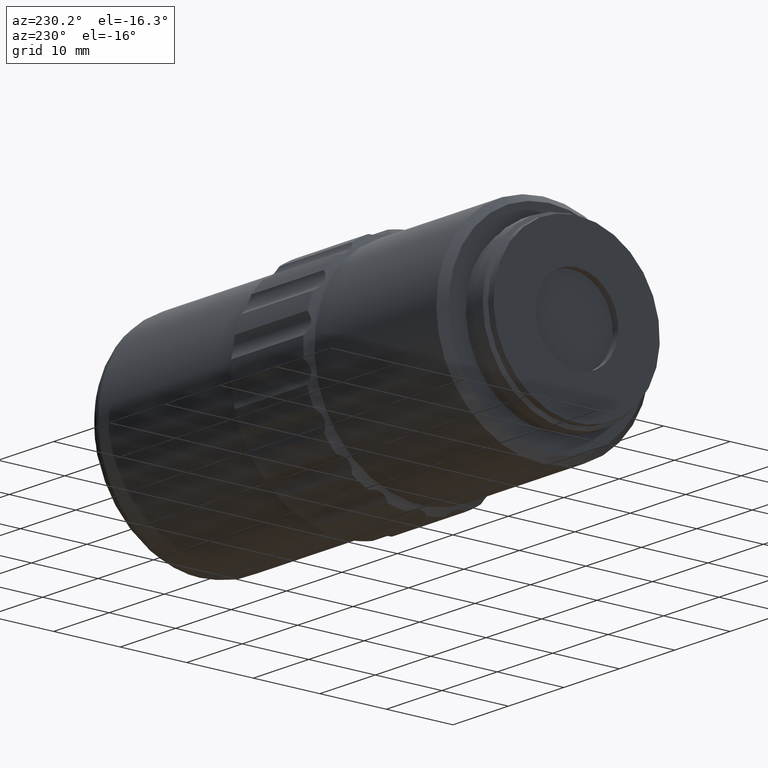
[diagram: clean part render]
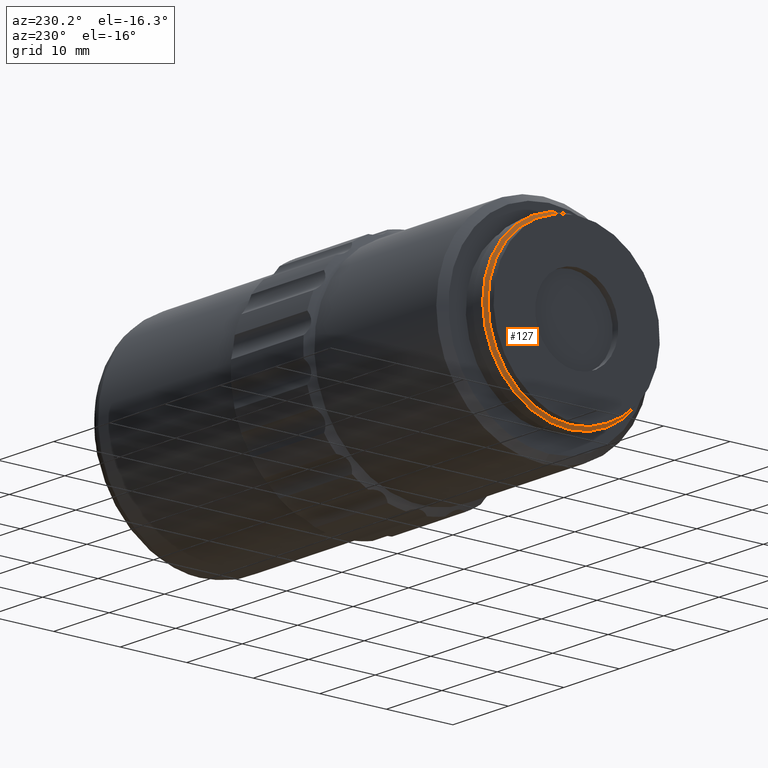
[diagram: same view with one face highlighted and labeled with its STEP entity id]
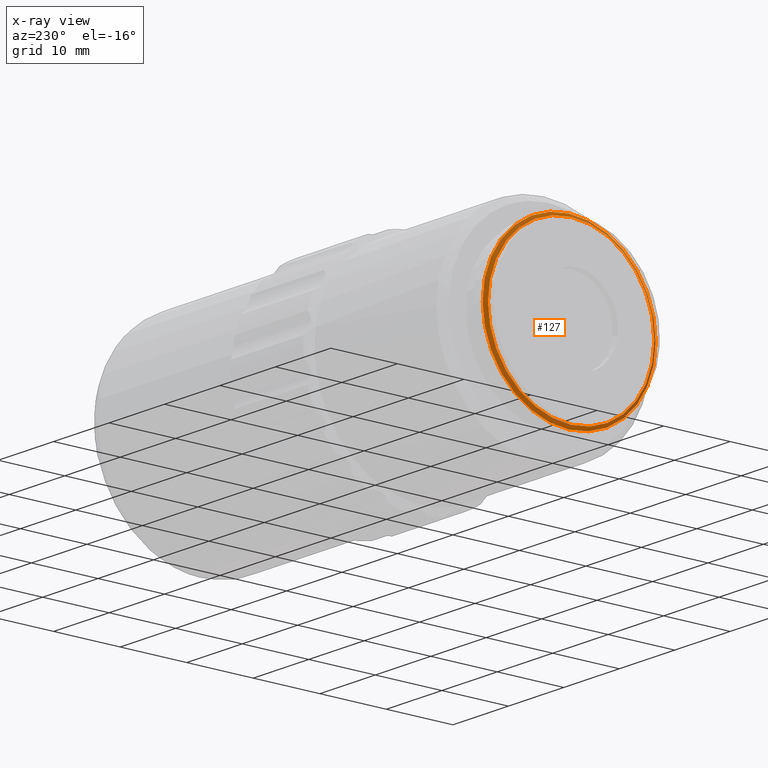
[diagram: x-ray of the same camera — body ghosted, the highlighted face saturated]
A machine part, auxiliary view. The second image highlights one B-rep face of the part: STEP entity #127.
The next image is the same camera in x-ray: the body ghosted, the highlighted face saturated — about 0% of this face is hidden behind the body in this view.
In plain terms, the highlighted conical surface has half-angle 55 deg.
Its self-contained STEP definition (entity closure, byte-faithful):
#30 = CARTESIAN_POINT ( 'NONE',  ( -8.553141965121202617, 46.02096199999999726, 0.000000000000000000 ) ) ;
#39 = DIRECTION ( 'NONE',  ( 0.000000000000000000, 0.000000000000000000, 1.000000000000000000 ) ) ;
#73 = EDGE_CURVE ( 'NONE', #1271, #1271, #1711, .T. ) ;
#98 = CARTESIAN_POINT ( 'NONE',  ( -8.553141965121202617, 33.52096200000000437, 0.000000000000000000 ) ) ;
#111 = ORIENTED_EDGE ( 'NONE', *, *, #1545, .F. ) ;
#127 = ADVANCED_FACE ( 'NONE', ( #511, #170 ), #317, .T. ) ;
#170 = FACE_OUTER_BOUND ( 'NONE', #756, .T. ) ;
#283 = AXIS2_PLACEMENT_3D ( 'NONE', #30, #820, #1492 ) ;
#307 = DIRECTION ( 'NONE',  ( 1.000000000000000000, -0.000000000000000000, 0.000000000000000000 ) ) ;
#317 = CONICAL_SURFACE ( 'NONE', #658, 12.99999999999999822, 0.9599310885968810325 ) ;
#511 = FACE_BOUND ( 'NONE', #1637, .T. ) ;
#618 = CARTESIAN_POINT ( 'NONE',  ( -8.203038196016342098, 46.02096199999999726, 13.00000000000000178 ) ) ;
#637 = DIRECTION ( 'NONE',  ( 0.000000000000000000, 0.000000000000000000, -1.000000000000000000 ) ) ;
#658 = AXIS2_PLACEMENT_3D ( 'NONE', #1177, #307, #637 ) ;
#756 = EDGE_LOOP ( 'NONE', ( #111 ) ) ;
#767 = CIRCLE ( 'NONE', #1995, 13.00000000000000178 ) ;
#820 = DIRECTION ( 'NONE',  ( 1.000000000000000000, 0.000000000000000000, 0.000000000000000000 ) ) ;
#1177 = CARTESIAN_POINT ( 'NONE',  ( -8.203038196016347428, 46.02096199999999726, 0.000000000000000000 ) ) ;
#1201 = ORIENTED_EDGE ( 'NONE', *, *, #73, .T. ) ;
#1271 = VERTEX_POINT ( 'NONE', #98 ) ;
#1325 = DIRECTION ( 'NONE',  ( 1.000000000000000000, -0.000000000000000000, -0.000000000000000000 ) ) ;
#1492 = DIRECTION ( 'NONE',  ( 0.000000000000000000, -1.000000000000000000, 0.000000000000000000 ) ) ;
#1545 = EDGE_CURVE ( 'NONE', #1941, #1941, #767, .T. ) ;
#1637 = EDGE_LOOP ( 'NONE', ( #1201 ) ) ;
#1711 = CIRCLE ( 'NONE', #283, 12.49999999999999645 ) ;
#1941 = VERTEX_POINT ( 'NONE', #618 ) ;
#1994 = CARTESIAN_POINT ( 'NONE',  ( -8.203038196016342098, 46.02096199999999726, 0.000000000000000000 ) ) ;
#1995 = AXIS2_PLACEMENT_3D ( 'NONE', #1994, #1325, #39 ) ;